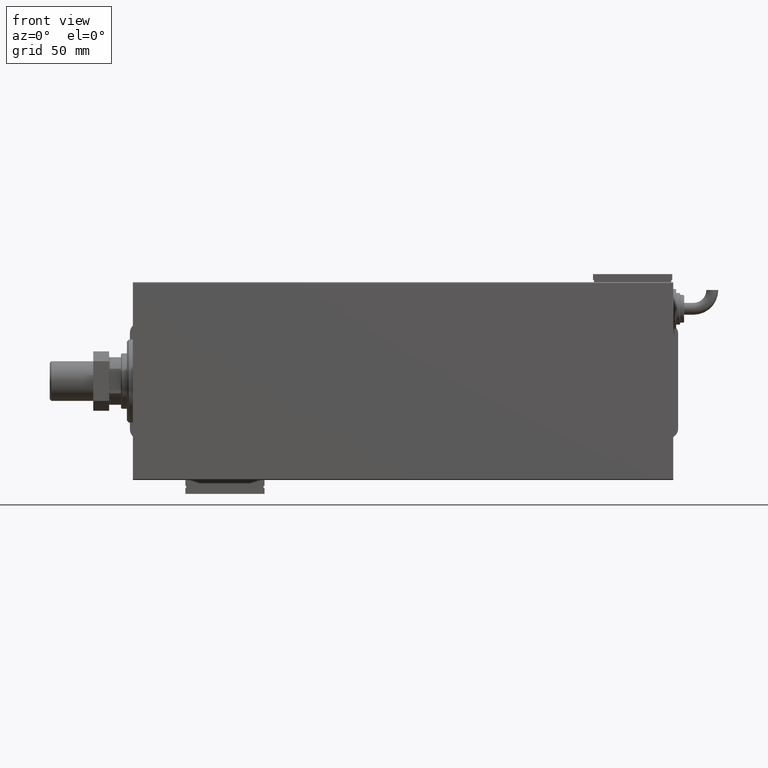
[diagram: clean part render]
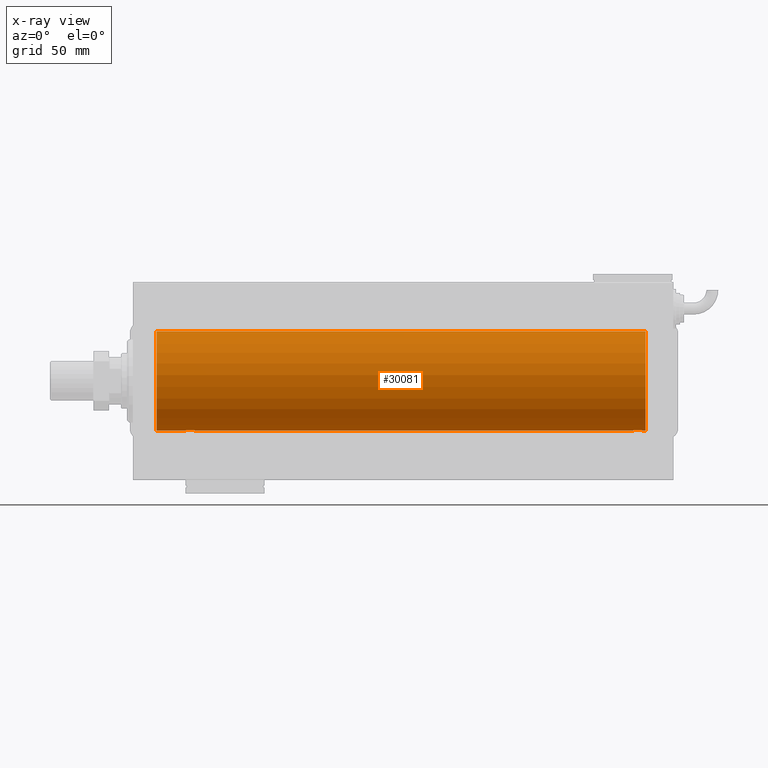
[diagram: x-ray — body ghosted, one internal face saturated and labeled with its STEP entity id]
A machine part, front view, then the same camera in x-ray: the body is ghosted and one INTERNAL B-rep face — a face not visible from any outside direction — is saturated and labeled: STEP entity #30081.
In plain terms, the highlighted cylindrical surface (partial cylindrical patch) has radius 25 mm, axis along (-1, -0, -0).
Its self-contained STEP definition (entity closure, byte-faithful):
#726 = CARTESIAN_POINT ( 'NONE',  ( 254.1956433908370059, -2.372734907014222738, -24.88722742718432812 ) ) ;
#1033 = CARTESIAN_POINT ( 'NONE',  ( 253.8927615416158972, -2.247417070759944568, -24.89885693081944851 ) ) ;
#1274 = AXIS2_PLACEMENT_3D ( 'NONE', #59422, #8763, #22576 ) ;
#1378 = CARTESIAN_POINT ( 'NONE',  ( 27.34878866440888245, -1.884161199660614017, -24.92916496727982434 ) ) ;
#3582 = ORIENTED_EDGE ( 'NONE', *, *, #54499, .T. ) ;
#4044 = VERTEX_POINT ( 'NONE', #16089 ) ;
#4174 = CARTESIAN_POINT ( 'NONE',  ( 29.64904390169096970, -2.419770561643905804, -24.88263927071751169 ) ) ;
#5162 = DIRECTION ( 'NONE',  ( 0.000000000000000000, 0.000000000000000000, 1.000000000000000000 ) ) ;
#5637 = CARTESIAN_POINT ( 'NONE',  ( 252.5665064476024781, -0.6588655613946440281, -24.99312727339970053 ) ) ;
#5987 = CARTESIAN_POINT ( 'NONE',  ( 26.50000000000000000, -0.3305063766663763336, -25.00000000000000355 ) ) ;
#7010 = CARTESIAN_POINT ( 'NONE',  ( 259.0000000000000000, 0.000000000000000000, 0.000000000000000000 ) ) ;
#7495 = CARTESIAN_POINT ( 'NONE',  ( 259.0000000000000000, 0.000000000000000000, 25.00000000000000000 ) ) ;
#7820 = CARTESIAN_POINT ( 'NONE',  ( 256.2538319542450154, -2.169003991399887976, -24.90589728951137971 ) ) ;
#8336 = CARTESIAN_POINT ( 'NONE',  ( 259.0000000000000000, 3.061616997868383043E-15, -25.00000000000000000 ) ) ;
#8740 = CARTESIAN_POINT ( 'NONE',  ( 257.3721596940860650, -0.8058335233485539595, -24.98746277938382931 ) ) ;
#8763 = DIRECTION ( 'NONE',  ( -1.000000000000000000, 0.000000000000000000, 0.000000000000000000 ) ) ;
#9376 = CARTESIAN_POINT ( 'NONE',  ( 29.32947680114268252, -2.483544361357266084, -24.87635491893501083 ) ) ;
#9426 = CARTESIAN_POINT ( 'NONE',  ( 257.5000000000000000, 3.061616978452697446E-15, -25.00000000000000000 ) ) ;
#9600 = LINE ( 'NONE', #42452, #27225 ) ;
#9772 = FACE_OUTER_BOUND ( 'NONE', #57049, .T. ) ;
#9936 = CARTESIAN_POINT ( 'NONE',  ( 252.8317235850603879, -1.255214705003223408, -24.96884293994578030 ) ) ;
#10207 = DIRECTION ( 'NONE',  ( -1.000000000000000000, -0.000000000000000000, -0.000000000000000000 ) ) ;
#11506 = ORIENTED_EDGE ( 'NONE', *, *, #15021, .T. ) ;
#13369 = CARTESIAN_POINT ( 'NONE',  ( 30.52536182243081342, -1.987446652080259391, -24.92104239223420592 ) ) ;
#13959 = CARTESIAN_POINT ( 'NONE',  ( 12.00000000000001066, 3.061616997868383043E-15, -25.00000000000000000 ) ) ;
#15021 = EDGE_CURVE ( 'NONE', #25194, #32909, #47967, .T. ) ;
#15560 = VERTEX_POINT ( 'NONE', #13959 ) ;
#15777 = CARTESIAN_POINT ( 'NONE',  ( 28.67403429960540606, -2.484007091859761207, -24.87630842367763506 ) ) ;
#16089 = CARTESIAN_POINT ( 'NONE',  ( 252.5000000000000000, -4.337149129868305233E-14, -25.00000000000000000 ) ) ;
#16283 = VERTEX_POINT ( 'NONE', #30386 ) ;
#17004 = DIRECTION ( 'NONE',  ( -1.000000000000000000, -0.000000000000000000, -0.000000000000000000 ) ) ;
#17439 = CARTESIAN_POINT ( 'NONE',  ( 31.50000000000000000, 3.061616978460191625E-15, -25.00000000000000000 ) ) ;
#18246 = CARTESIAN_POINT ( 'NONE',  ( 256.8841238278648120, -1.651251241585120377, -24.94567559498348430 ) ) ;
#18465 = DIRECTION ( 'NONE',  ( -1.000000000000000000, -0.000000000000000000, -0.000000000000000000 ) ) ;
#18551 = CARTESIAN_POINT ( 'NONE',  ( 256.6538333614934118, -1.881857718844739624, -24.92933960374833902 ) ) ;
#18597 = CARTESIAN_POINT ( 'NONE',  ( 30.11036796508864910, -2.245863995402895164, -24.89899750494197406 ) ) ;
#18853 = CARTESIAN_POINT ( 'NONE',  ( 252.7539362090593329, -1.109818057797474555, -24.97580694515541921 ) ) ;
#18926 = CIRCLE ( 'NONE', #1274, 25.00000000000000000 ) ;
#19459 = CARTESIAN_POINT ( 'NONE',  ( 253.1181404585135510, -1.653834020452977782, -24.94550385189584674 ) ) ;
#19813 = CARTESIAN_POINT ( 'NONE',  ( 26.83172358506043054, -1.255214705003178555, -24.96884293994578030 ) ) ;
#20018 = CARTESIAN_POINT ( 'NONE',  ( 259.0000000000000000, 3.061616997868383043E-15, -25.00000000000000000 ) ) ;
#20109 = CARTESIAN_POINT ( 'NONE',  ( 26.50000000000000355, -4.113702575029848227E-15, -25.00000000000000000 ) ) ;
#21691 = EDGE_CURVE ( 'NONE', #32909, #4044, #44835, .T. ) ;
#22576 = DIRECTION ( 'NONE',  ( 0.000000000000000000, 0.000000000000000000, 1.000000000000000000 ) ) ;
#23498 = CARTESIAN_POINT ( 'NONE',  ( 31.50000000000000000, 3.061616978460191625E-15, -25.00000000000000000 ) ) ;
#24724 = CARTESIAN_POINT ( 'NONE',  ( 27.89276154161591137, -2.247417070759893498, -24.89885693081945917 ) ) ;
#25153 = VECTOR ( 'NONE', #48552, 1000.000000000000000 ) ;
#25194 = VERTEX_POINT ( 'NONE', #54110 ) ;
#25321 = CARTESIAN_POINT ( 'NONE',  ( 27.01461966282905180, -1.528152964861308138, -24.95362559291378801 ) ) ;
#26309 = VECTOR ( 'NONE', #18465, 1000.000000000000000 ) ;
#26566 = CARTESIAN_POINT ( 'NONE',  ( 256.1103679650888125, -2.245863995402927582, -24.89899750494196695 ) ) ;
#27225 = VECTOR ( 'NONE', #10207, 1000.000000000000000 ) ;
#27478 = CARTESIAN_POINT ( 'NONE',  ( 257.2476025101955202, -1.106703319666894947, -24.97594585958023217 ) ) ;
#27521 = CARTESIAN_POINT ( 'NONE',  ( 29.80788342405805835, -2.371528299825741648, -24.88734287464370709 ) ) ;
#27819 = CARTESIAN_POINT ( 'NONE',  ( 31.50000000000000000, -0.1631750940176180942, -25.00000000000001066 ) ) ;
#28111 = CARTESIAN_POINT ( 'NONE',  ( 29.16706495178060621, -2.499872792855077464, -24.87469871246082320 ) ) ;
#28378 = CARTESIAN_POINT ( 'NONE',  ( 255.1670649517807590, -2.499872792855129422, -24.87469871246082320 ) ) ;
#28521 = CYLINDRICAL_SURFACE ( 'NONE', #53784, 25.00000000000000000 ) ;
#28683 = CARTESIAN_POINT ( 'NONE',  ( 253.3487886644088576, -1.884161199660660646, -24.92916496727982079 ) ) ;
#29035 = LINE ( 'NONE', #7495, #29259 ) ;
#29259 = VECTOR ( 'NONE', #17004, 1000.000000000000000 ) ;
#30081 = ADVANCED_FACE ( 'NONE', ( #9772 ), #28521, .F. ) ;
#30361 = DIRECTION ( 'NONE',  ( 0.000000000000000000, 0.000000000000000000, 1.000000000000000000 ) ) ;
#30386 = CARTESIAN_POINT ( 'NONE',  ( 12.00000000000001066, 0.000000000000000000, 25.00000000000000000 ) ) ;
#30562 = ORIENTED_EDGE ( 'NONE', *, *, #44146, .T. ) ;
#32080 = CARTESIAN_POINT ( 'NONE',  ( 257.4201490922092717, -0.6480119923854290587, -24.99212088949389354 ) ) ;
#32130 = CARTESIAN_POINT ( 'NONE',  ( 30.25383195424502958, -2.169003991399867104, -24.90589728951138326 ) ) ;
#32723 = EDGE_CURVE ( 'NONE', #25194, #44664, #53736, .T. ) ;
#32909 = VERTEX_POINT ( 'NONE', #9426 ) ;
#33507 = EDGE_CURVE ( 'NONE', #49173, #15560, #59923, .T. ) ;
#34118 = AXIS2_PLACEMENT_3D ( 'NONE', #7010, #47959, #30361 ) ;
#36675 = CARTESIAN_POINT ( 'NONE',  ( 257.5000000000001137, -0.1631750940176236453, -25.00000000000001066 ) ) ;
#37023 = CARTESIAN_POINT ( 'NONE',  ( 31.17011290280925451, -1.252049606094333578, -24.96900299967627745 ) ) ;
#37279 = CARTESIAN_POINT ( 'NONE',  ( 256.5253618224309662, -1.987446652080274268, -24.92104239223420947 ) ) ;
#38492 = CARTESIAN_POINT ( 'NONE',  ( 253.7491597607595111, -2.170728182476780788, -24.90574631553725027 ) ) ;
#38836 = CARTESIAN_POINT ( 'NONE',  ( 26.56650644760252789, -0.6588655613945878509, -24.99312727339970763 ) ) ;
#40359 = B_SPLINE_CURVE_WITH_KNOTS ( 'NONE', 3,
 ( #23498, #27819, #51433, #55744, #41337, #60059, #37023, #50842, #60660, #55435, #13369, #32130, #18597, #27521, #4174, #9376, #28111, #42239, #15777, #43736, #48353, #24724, #43448, #56954, #1378, #53249, #25321, #19813, #42842, #38836, #5987, #20109 ),
 .UNSPECIFIED., .F., .F.,
 ( 4, 2, 2, 2, 2, 2, 2, 2, 2, 2, 2, 2, 2, 2, 2, 4 ),
 ( 0.007821024441662299820, 0.008309723826317907958, 0.008798423210973517830, 0.009287122595629122498, 0.009775821980284727167, 0.01026452136494033184, 0.01075322074959593650, 0.01124192013425154291, 0.01173061951890714757, 0.01221931890356275051, 0.01270801828821835691, 0.01319671767287396158, 0.01368541705752956625, 0.01417411644218517092, 0.01466281582684077732, 0.01564021459615199186 ),
 .UNSPECIFIED. ) ;
#41337 = CARTESIAN_POINT ( 'NONE',  ( 31.37215969408607563, -0.8058335233485418581, -24.98746277938382931 ) ) ;
#41592 = CARTESIAN_POINT ( 'NONE',  ( 257.5000000000000000, 3.061616978452697446E-15, -25.00000000000000000 ) ) ;
#42194 = CARTESIAN_POINT ( 'NONE',  ( 253.4774322565982345, -1.989585286700310540, -24.92087098724766037 ) ) ;
#42239 = CARTESIAN_POINT ( 'NONE',  ( 28.83676410361457343, -2.500125740978191846, -24.87467329022545925 ) ) ;
#42298 = CARTESIAN_POINT ( 'NONE',  ( 259.0000000000000000, 0.000000000000000000, 25.00000000000000000 ) ) ;
#42452 = CARTESIAN_POINT ( 'NONE',  ( 259.0000000000000000, 3.061616997868383043E-15, -25.00000000000000000 ) ) ;
#42796 = CARTESIAN_POINT ( 'NONE',  ( 254.3543933385136597, -2.420689345803805903, -24.88254961038872892 ) ) ;
#42842 = CARTESIAN_POINT ( 'NONE',  ( 26.75393620905933290, -1.109818057797416158, -24.97580694515542277 ) ) ;
#43448 = CARTESIAN_POINT ( 'NONE',  ( 27.74915976075945068, -2.170728182476717283, -24.90574631553725027 ) ) ;
#43736 = CARTESIAN_POINT ( 'NONE',  ( 28.35439333851368460, -2.420689345803756165, -24.88254961038873958 ) ) ;
#44146 = EDGE_CURVE ( 'NONE', #15560, #16283, #18926, .T. ) ;
#44579 = VERTEX_POINT ( 'NONE', #17439 ) ;
#44664 = VERTEX_POINT ( 'NONE', #42298 ) ;
#44835 = B_SPLINE_CURVE_WITH_KNOTS ( 'NONE', 3,
 ( #41592, #36675, #55389, #32080, #8740, #27478, #46195, #60313, #18246, #18551, #37279, #7820, #26566, #45277, #57209, #51388, #28378, #52003, #46789, #42796, #726, #1033, #38492, #42194, #28683, #19459, #47092, #9936, #18853, #5637, #47699, #56599 ),
 .UNSPECIFIED., .F., .F.,
 ( 4, 2, 2, 2, 2, 2, 2, 2, 2, 2, 2, 2, 2, 2, 2, 4 ),
 ( 0.007821024441662358800, 0.008309723826317966938, 0.008798423210973573341, 0.009287122595629181479, 0.009775821980284789617, 0.01026452136494039775, 0.01075322074959600589, 0.01124192013425161403, 0.01173061951890722217, 0.01221931890356283031, 0.01270801828821843844, 0.01319671767287404658, 0.01368541705752965472, 0.01417411644218526286, 0.01466281582684087273, 0.01564021459615215145 ),
 .UNSPECIFIED. ) ;
#45108 = ORIENTED_EDGE ( 'NONE', *, *, #21691, .T. ) ;
#45277 = CARTESIAN_POINT ( 'NONE',  ( 255.8078834240581330, -2.371528299825781616, -24.88734287464370354 ) ) ;
#46195 = CARTESIAN_POINT ( 'NONE',  ( 257.1701129028092510, -1.252049606094359779, -24.96900299967627035 ) ) ;
#46789 = CARTESIAN_POINT ( 'NONE',  ( 254.6740342996052675, -2.484007091859810501, -24.87630842367762440 ) ) ;
#47092 = CARTESIAN_POINT ( 'NONE',  ( 253.0146196628290056, -1.528152964861355434, -24.95362559291378801 ) ) ;
#47233 = CARTESIAN_POINT ( 'NONE',  ( 259.0000000000000000, 0.000000000000000000, 0.000000000000000000 ) ) ;
#47699 = CARTESIAN_POINT ( 'NONE',  ( 252.4999999999999432, -0.3305063766664071978, -24.99999999999999645 ) ) ;
#47959 = DIRECTION ( 'NONE',  ( -1.000000000000000000, 0.000000000000000000, 0.000000000000000000 ) ) ;
#47967 = LINE ( 'NONE', #20018, #25153 ) ;
#48353 = CARTESIAN_POINT ( 'NONE',  ( 28.19564339083698457, -2.372734907014171224, -24.88722742718433523 ) ) ;
#48552 = DIRECTION ( 'NONE',  ( -1.000000000000000000, -0.000000000000000000, -0.000000000000000000 ) ) ;
#49173 = VERTEX_POINT ( 'NONE', #51446 ) ;
#49774 = ORIENTED_EDGE ( 'NONE', *, *, #33507, .T. ) ;
#50842 = CARTESIAN_POINT ( 'NONE',  ( 30.98749815834398902, -1.525407911884361312, -24.95379469572362652 ) ) ;
#51388 = CARTESIAN_POINT ( 'NONE',  ( 255.3294768011427038, -2.483544361357311825, -24.87635491893501083 ) ) ;
#51433 = CARTESIAN_POINT ( 'NONE',  ( 31.48417840057656747, -0.3254210271412200650, -24.99840249400844527 ) ) ;
#51446 = CARTESIAN_POINT ( 'NONE',  ( 26.50000000000000355, -4.113702575029848227E-15, -25.00000000000000000 ) ) ;
#52003 = CARTESIAN_POINT ( 'NONE',  ( 254.8367641036144562, -2.500125740978243805, -24.87467329022544504 ) ) ;
#53249 = CARTESIAN_POINT ( 'NONE',  ( 27.11814045851354038, -1.653834020452936038, -24.94550385189584674 ) ) ;
#53736 = CIRCLE ( 'NONE', #34118, 25.00000000000000000 ) ;
#53784 = AXIS2_PLACEMENT_3D ( 'NONE', #47233, #60445, #5162 ) ;
#54110 = CARTESIAN_POINT ( 'NONE',  ( 259.0000000000000000, 3.061616997868383043E-15, -25.00000000000000000 ) ) ;
#54499 = EDGE_CURVE ( 'NONE', #4044, #44579, #9600, .T. ) ;
#55389 = CARTESIAN_POINT ( 'NONE',  ( 257.4841784005766954, -0.3254210271412252831, -24.99840249400845238 ) ) ;
#55435 = CARTESIAN_POINT ( 'NONE',  ( 30.65383336149337978, -1.881857718844712091, -24.92933960374833546 ) ) ;
#55744 = CARTESIAN_POINT ( 'NONE',  ( 31.42014909220930363, -0.6480119923854200659, -24.99212088949392196 ) ) ;
#56052 = EDGE_CURVE ( 'NONE', #44579, #49173, #40359, .T. ) ;
#56599 = CARTESIAN_POINT ( 'NONE',  ( 252.5000000000000000, -4.337149129868305233E-14, -25.00000000000000000 ) ) ;
#56603 = ORIENTED_EDGE ( 'NONE', *, *, #56052, .T. ) ;
#56954 = CARTESIAN_POINT ( 'NONE',  ( 27.47743225659810307, -1.989585286700244149, -24.92087098724765681 ) ) ;
#57049 = EDGE_LOOP ( 'NONE', ( #57953, #11506, #45108, #3582, #56603, #49774, #30562, #58796 ) ) ;
#57101 = EDGE_CURVE ( 'NONE', #44664, #16283, #29035, .T. ) ;
#57209 = CARTESIAN_POINT ( 'NONE',  ( 255.6490439016910159, -2.419770561643941775, -24.88263927071750814 ) ) ;
#57953 = ORIENTED_EDGE ( 'NONE', *, *, #32723, .F. ) ;
#58796 = ORIENTED_EDGE ( 'NONE', *, *, #57101, .F. ) ;
#59422 = CARTESIAN_POINT ( 'NONE',  ( 12.00000000000001066, 0.000000000000000000, 0.000000000000000000 ) ) ;
#59923 = LINE ( 'NONE', #8336, #26309 ) ;
#60059 = CARTESIAN_POINT ( 'NONE',  ( 31.24760251019550950, -1.106703319666878071, -24.97594585958023572 ) ) ;
#60313 = CARTESIAN_POINT ( 'NONE',  ( 256.9874981583440672, -1.525407911884391288, -24.95379469572361586 ) ) ;
#60445 = DIRECTION ( 'NONE',  ( -1.000000000000000000, -0.000000000000000000, -0.000000000000000000 ) ) ;
#60660 = CARTESIAN_POINT ( 'NONE',  ( 30.88412382786470900, -1.651251241585097063, -24.94567559498348075 ) ) ;